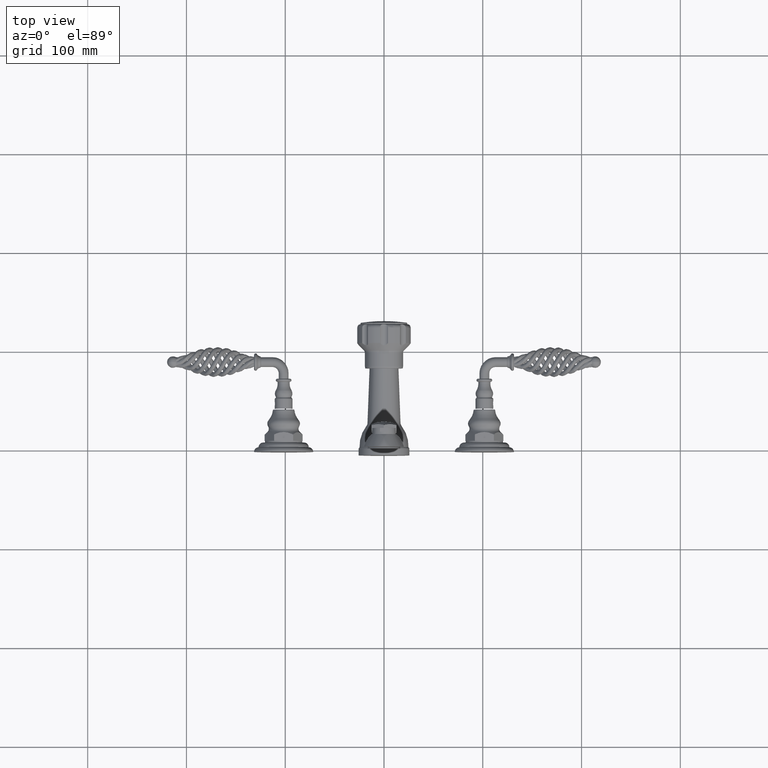
[diagram: clean part render]
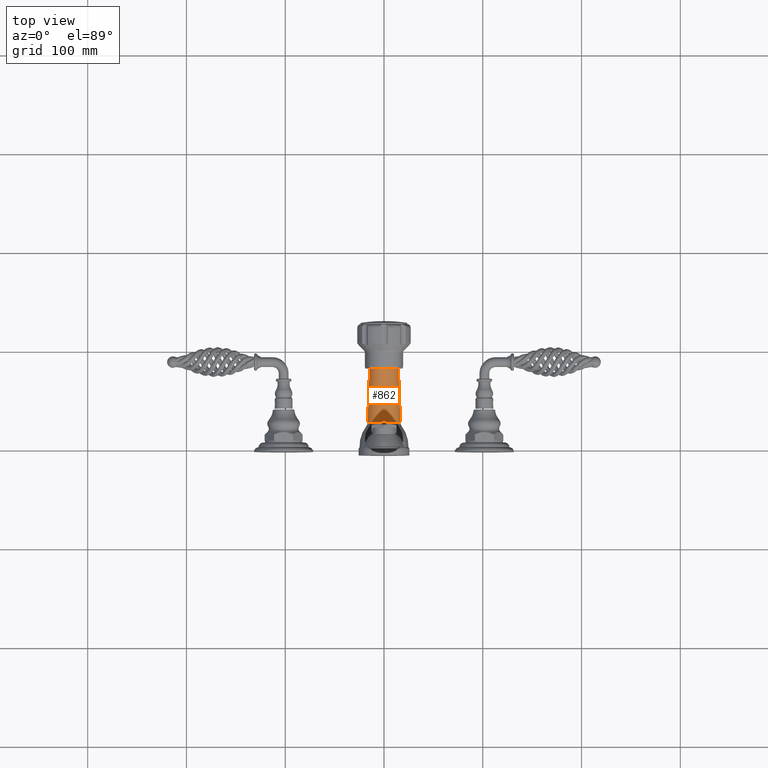
[diagram: same view with one face highlighted and labeled with its STEP entity id]
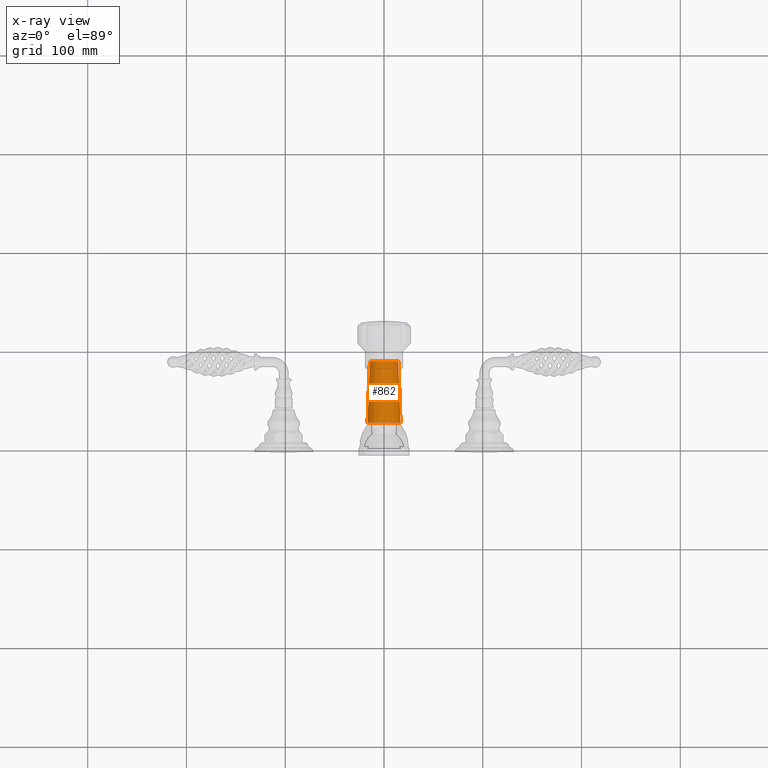
[diagram: x-ray of the same camera — body ghosted, the highlighted face saturated]
A machine part, top view. The second image highlights one B-rep face of the part: STEP entity #862.
The next image is the same camera in x-ray: the body ghosted, the highlighted face saturated — about 1% of this face is hidden behind the body in this view.
In plain terms, the highlighted conical surface has half-angle 2.15 deg.
Its self-contained STEP definition (entity closure, byte-faithful):
#639=CARTESIAN_POINT('',(0.E0,1.102557773058E0,-9.E0));
#640=DIRECTION('',(0.E0,-1.E0,0.E0));
#641=DIRECTION('',(1.E0,0.E0,0.E0));
#642=AXIS2_PLACEMENT_3D('',#639,#640,#641);
#654=CARTESIAN_POINT('',(0.E0,3.549217E0,-9.E0));
#655=DIRECTION('',(0.E0,1.E0,0.E0));
#656=DIRECTION('',(-1.E0,0.E0,0.E0));
#657=AXIS2_PLACEMENT_3D('',#654,#655,#656);
#659=DIRECTION('',(-3.752296353159E-2,9.992957656309E-1,-8.967455820333E-13));
#660=VECTOR('',#659,2.448383462922E0);
#661=CARTESIAN_POINT('',(6.568706033906E-1,1.102557772861E0,-8.999999999998E0));
#662=LINE('',#661,#660);
#668=DIRECTION('',(3.752296353159E-2,9.992957656309E-1,8.967455820333E-13));
#669=VECTOR('',#668,2.448383462922E0);
#670=CARTESIAN_POINT('',(-6.568706033906E-1,1.102557772861E0,
-9.000000000002E0));
#671=LINE('',#670,#669);
#714=CARTESIAN_POINT('',(5.65E-1,3.549217E0,-9.E0));
#715=CARTESIAN_POINT('',(-5.65E-1,3.549217E0,-9.E0));
#716=VERTEX_POINT('',#714);
#717=VERTEX_POINT('',#715);
#718=CARTESIAN_POINT('',(-6.568706033832E-1,1.102557773058E0,-9.E0));
#719=CARTESIAN_POINT('',(6.568706033832E-1,1.102557773058E0,-9.E0));
#720=VERTEX_POINT('',#718);
#721=VERTEX_POINT('',#719);
#848=CARTESIAN_POINT('',(0.E0,2.325887380700E0,-9.E0));
#849=DIRECTION('',(0.E0,-1.E0,0.E0));
#850=DIRECTION('',(-1.E0,0.E0,0.E0));
#851=AXIS2_PLACEMENT_3D('',#848,#849,#850);
#852=CONICAL_SURFACE('',#851,6.109353019105E-1,2.150412266963E0);
#853=ORIENTED_EDGE('',*,*,#838,.T.);
#855=ORIENTED_EDGE('',*,*,#854,.T.);
#857=ORIENTED_EDGE('',*,*,#856,.T.);
#859=ORIENTED_EDGE('',*,*,#858,.F.);
#860=EDGE_LOOP('',(#853,#855,#857,#859));
#861=FACE_OUTER_BOUND('',#860,.F.);
#862=ADVANCED_FACE('',(#861),#852,.T.);
#643=CIRCLE('',#642,6.568706033832E-1);
#658=CIRCLE('',#657,5.65E-1);
#838=EDGE_CURVE('',#721,#720,#643,.T.);
#854=EDGE_CURVE('',#720,#717,#671,.T.);
#856=EDGE_CURVE('',#717,#716,#658,.T.);
#858=EDGE_CURVE('',#721,#716,#662,.T.);